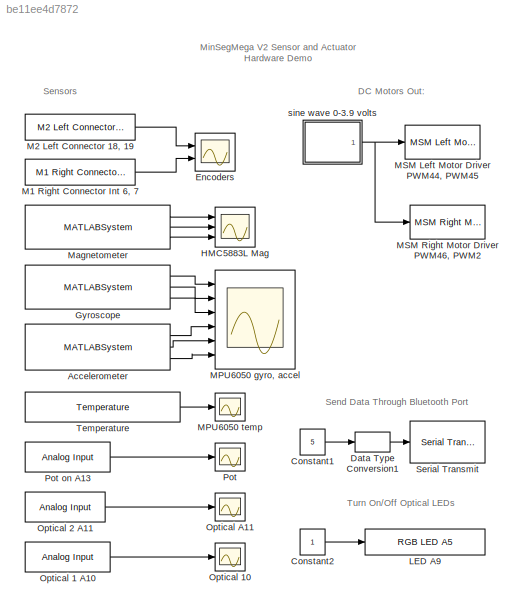
MODEL slx_be11ee4d7872
KIND model
CONFIG AbsTol = auto
CONFIG FixedStep = auto
CONFIG MaxStep = auto
CONFIG MinStep = auto
CONFIG RelTol = 1e-3
CONFIG SampleTimeConstraint = Unconstrained
CONFIG Solver = ode45
CONFIG SolverMode = Auto
CONFIG SolverName = ode45
CONFIG StartTime = 0.0
CONFIG StopTime = 10.0
BLOCK [MATLABSystem] Accelerometer
  MaskDisplay = disp('soMPU6050Accel');\nport_label('output',1,'xaccel');\nport_label('output',2,'yaccel');\nport_label('output',3,'zaccel');
  MaskType = soMPU6050Accel
  Ports = [0, 3]
  SimulateUsing = Code generation
  System = soMPU6050Accel
BLOCK [Constant] Constant1
  SampleTime = -1
  Value = 5
BLOCK [Constant] Constant2
  SampleTime = -1
BLOCK [DataTypeConversion] Data Type Conversion1
  OutDataTypeStr = uint8
  RndMeth = Floor
  SaturateOnIntegerOverflow = off
BLOCK [Scope] Encoders
  DataFormat = StructureWithTime
  Floating = off
  NumInputPorts = 2
  Ports = [2]
  SampleTime = 0
  TimeRange = 30
  YMax = -184.3~400
  YMin = -203.7~-150
BLOCK [MATLABSystem] Gyroscope
  DLPFmode = 0
  MaskDisplay = disp('soMPU6050Gyro');\nport_label('output',1,'xvel');\nport_label('output',2,'yvel');\nport_label('output',3,'zvel');
  MaskType = soMPU6050Gyro
  Ports = [0, 3]
  System = soMPU6050Gyro
BLOCK [Scope] HMC5883L Mag
  DataFormat = StructureWithTime
  Floating = off
  NumInputPorts = 3
  Ports = [3]
  SampleTime = 0
  SaveName = ScopeData7
  TimeRange = 10
  YMax = -300~775~550
  YMin = -500~450~275
BLOCK [Reference] LED A9  REF=MinSegLibrary_M2V3/RGB LED A5
  Pin = 9
  Ports = [1]
  SourceBlock = MinSegLibrary_M2V3/RGB LED A5
  SourceType = soDAnalogWrite
BLOCK [Reference] M1 Right Connector Int 6, 7  REF=MinSegLibrary_MinSegMega/M1 Right Connector Int 6, 7
  Encoder = 2
  PWMFSelect = 3
  PWMTimer = -1
  PinA = 6
  PinB = 7
  Ports = [0, 1]
  SourceBlock = MinSegLibrary_MinSegMega/M1 Right Connector Int 6, 7
  SourceType = Encoder_arduino
BLOCK [Reference] M2 Left Connector 18, 19  REF=MinSegLibrary_MinSegMega/M2 Left Connector 18, 19
  Encoder = 1
  PWMFSelect = 3
  PWMTimer = -1
  PinA = 19
  PinB = 18
  Ports = [0, 1]
  SourceBlock = MinSegLibrary_MinSegMega/M2 Left Connector 18, 19
  SourceType = Encoder_arduino
BLOCK [Scope] MPU6050 gyro, accel
  DataFormat = StructureWithTime
  Floating = off
  NumInputPorts = 6
  Ports = [6]
  SampleTime = 0
  SaveName = ScopeData1
  TimeRange = 10
  YMax = 40000~40000~40000~5000~3000~27500
  YMin = -40000~-40000~-40000~-12500~-8000~7500
BLOCK [Scope] MPU6050 temp
  DataFormat = StructureWithTime
  Floating = off
  NumInputPorts = 1
  Ports = [1]
  SampleTime = 0
  SaveName = ScopeData2
  TimeRange = 30
  YMax = -1750
  YMin = -3750
BLOCK [Reference] MSM Left Motor Driver PWM44, PWM45  REF=MinSegLibrary_MinSegMega/MSM Left Motor Driver
PWM44, PWM45
  PWMoffset = 0
  Ports = [1]
  SourceBlock = MinSegLibrary_MinSegMega/MSM Left Motor Driver\nPWM44, PWM45
  Vsupply = 3.9
BLOCK [Reference] MSM Right Motor Driver PWM46, PWM2   REF=MinSegLibrary_MinSegMega/MSM Right Motor Driver
PWM46, PWM2

  PWMoffset = 0
  Ports = [1]
  SourceBlock = MinSegLibrary_MinSegMega/MSM Right Motor Driver\nPWM46, PWM2
  Vsupply = 3.9
BLOCK [MATLABSystem] Magnetometer
  MaskDisplay = disp('soHMC5883L');\nport_label('output',1,'xmag');\nport_label('output',2,'ymag');\nport_label('output',3,'zmag');
  MaskType = soHMC5883L
  Ports = [0, 3]
  SimulateUsing = Code generation
  System = soHMC5883L
BLOCK [Reference] Optical 1 A10   REF=arduinolib/Analog Input
  Ports = [0, 1]
  SourceBlock = arduinolib/Analog Input
  SourceType = Arduino Analog Input
  blockPlatform = arduino
  pinNumber = 10
  sampleTime = -1
BLOCK [Scope] Optical 10
  DataFormat = StructureWithTime
  Floating = off
  NumInputPorts = 1
  Ports = [1]
  SampleTime = 0
  SaveName = ScopeData4
  TimeRange = 30
  YMax = 1100
  YMin = 300
BLOCK [Reference] Optical 2 A11  REF=arduinolib/Analog Input
  Ports = [0, 1]
  SourceBlock = arduinolib/Analog Input
  SourceType = Arduino Analog Input
  blockPlatform = arduino
  pinNumber = 11
  sampleTime = -1
BLOCK [Scope] Optical A11
  DataFormat = StructureWithTime
  Floating = off
  NumInputPorts = 1
  Ports = [1]
  SampleTime = 0
  SaveName = ScopeData3
  TimeRange = 30
  YMax = 1100
  YMin = 100
BLOCK [Scope] Pot
  DataFormat = StructureWithTime
  Floating = off
  NumInputPorts = 1
  Ports = [1]
  SampleTime = 0
  SaveName = ScopeData6
  TimeRange = 30
  YMax = 600
  YMin = 275
BLOCK [Reference] Pot on A13  REF=arduinolib/Analog Input
  Ports = [0, 1]
  SourceBlock = arduinolib/Analog Input
  SourceType = Arduino Analog Input
  blockPlatform = arduino
  pinNumber = 13
  sampleTime = -1
BLOCK [Reference] Serial Transmit  REF=arduinolib/Serial Transmit
  Ports = [1]
  SourceBlock = arduinolib/Serial Transmit
  SourceType = Arduino Serial Transmit
  blockPlatform = arduino
  portNumber = 3
BLOCK [Reference] Temperature  REF=RASPlib/Temperature
  Ports = [0, 1]
  SimulateUsing = Code generation
  SourceBlock = RASPlib/Temperature
  SourceType = soMPU6050Temp
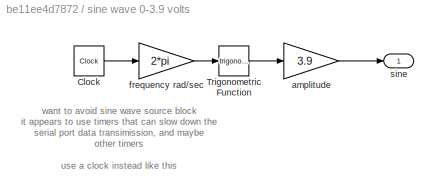
BLOCK [SubSystem] sine wave 0-3.9 volts
  Ports = [0, 1]
  RequestExecContextInheritance = off
BLOCK [Clock] sine wave 0-3.9 volts/Clock
BLOCK [Trigonometry] sine wave 0-3.9 volts/Trigonometric Function
  Ports = [1, 1]
BLOCK [Gain] sine wave 0-3.9 volts/amplitude
  Gain = 3.9
  OutDataTypeStr = Inherit: Inherit via internal rule
  ParamDataTypeStr = Inherit: Inherit via internal rule
  SaturateOnIntegerOverflow = off
BLOCK [Gain] sine wave 0-3.9 volts/frequency rad//sec
  Gain = 2*pi
  OutDataTypeStr = Inherit: Inherit via internal rule
  ParamDataTypeStr = Inherit: Inherit via internal rule
  SaturateOnIntegerOverflow = off
BLOCK [Outport] sine wave 0-3.9 volts/sine
  IconDisplay = Port number
ANNOTATION (root): DC Motors Out:
ANNOTATION (root): MinSegMega V2 Sensor and Actuator Hardware Demo
ANNOTATION (root): Send Data Through Bluetooth Port
ANNOTATION (root): Sensors
ANNOTATION (root): Turn On/Off Optical LEDs
ANNOTATION sine wave 0-3.9 volts: want to avoid sine wave source block it appears to use timers that can slow down the serial port data transimission, and maybe other timers use a clock instead like this
LINE Accelerometer:1 -> MPU6050 gyro, accel:4
LINE Accelerometer:2 -> MPU6050 gyro, accel:5
LINE Accelerometer:3 -> MPU6050 gyro, accel:6
LINE Constant1:1 -> Data Type Conversion1:1
LINE Constant2:1 -> LED A9:1
LINE Data Type Conversion1:1 -> Serial Transmit:1
LINE Gyroscope:1 -> MPU6050 gyro, accel:1
LINE Gyroscope:2 -> MPU6050 gyro, accel:2
LINE Gyroscope:3 -> MPU6050 gyro, accel:3
LINE M1 Right Connector Int 6, 7:1 -> Encoders:2
LINE M2 Left Connector 18, 19:1 -> Encoders:1
LINE Magnetometer:1 -> HMC5883L Mag:1
LINE Magnetometer:2 -> HMC5883L Mag:2
LINE Magnetometer:3 -> HMC5883L Mag:3
LINE Optical 1 A10 :1 -> Optical 10:1
LINE Optical 2 A11:1 -> Optical A11:1
LINE Pot on A13:1 -> Pot:1
LINE Temperature:1 -> MPU6050 temp:1
LINE sine wave 0-3.9 volts/Clock:1 -> sine wave 0-3.9 volts/frequency rad//sec:1
LINE sine wave 0-3.9 volts/Trigonometric Function:1 -> sine wave 0-3.9 volts/amplitude:1
LINE sine wave 0-3.9 volts/amplitude:1 -> sine wave 0-3.9 volts/sine:1
LINE sine wave 0-3.9 volts/frequency rad//sec:1 -> sine wave 0-3.9 volts/Trigonometric Function:1
NET sine wave 0-3.9 volts:1 -> MSM Left Motor Driver PWM44, PWM45:1, MSM Right Motor Driver PWM46, PWM2 :1
note: NET lines group one-source signal fan-out (src -> all destinations, sorted); 1:1 wires keep LINE
